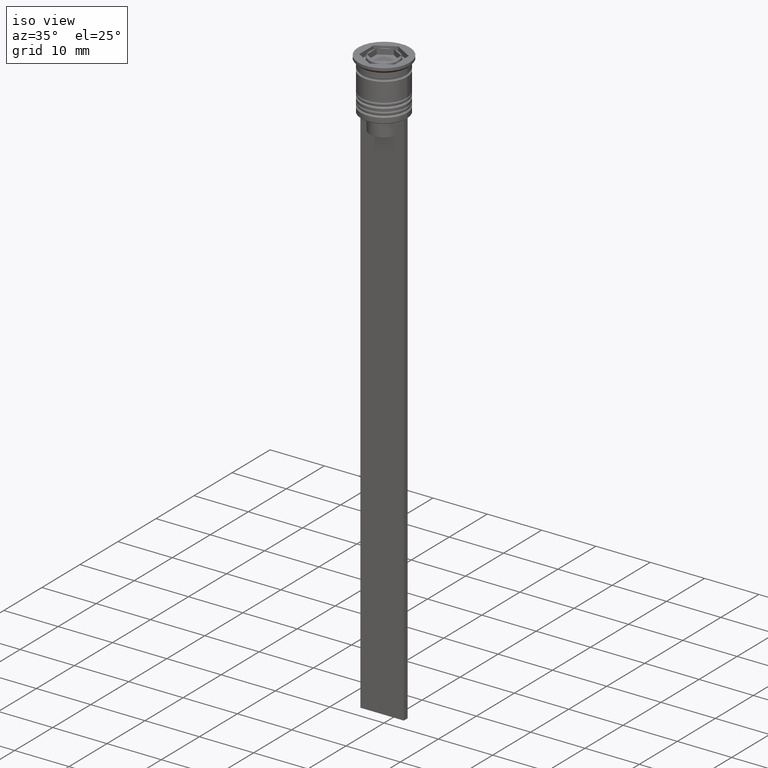
[diagram: clean part render]
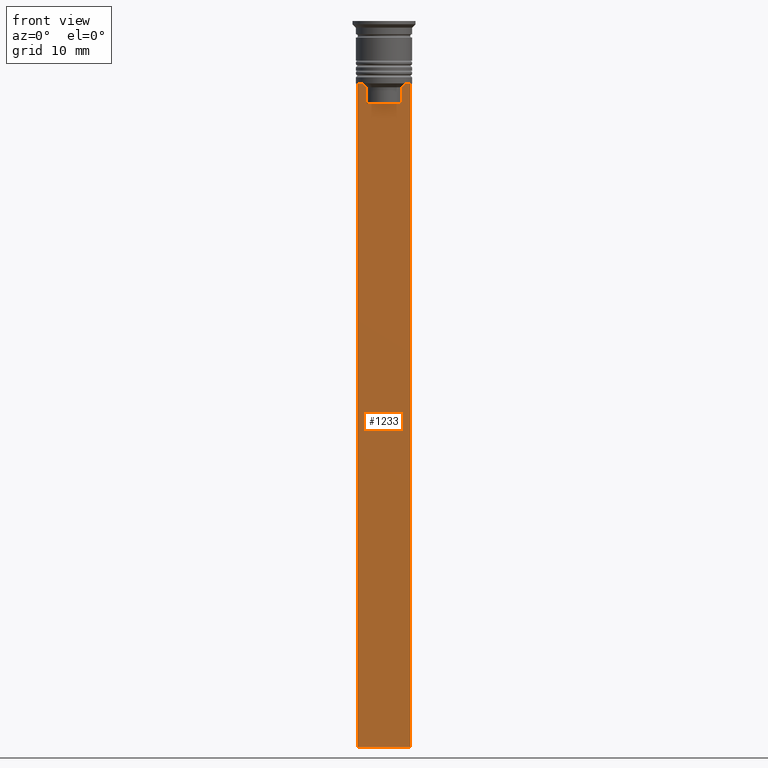
[diagram: tour spotlight — one face highlighted and labeled with its STEP entity id]
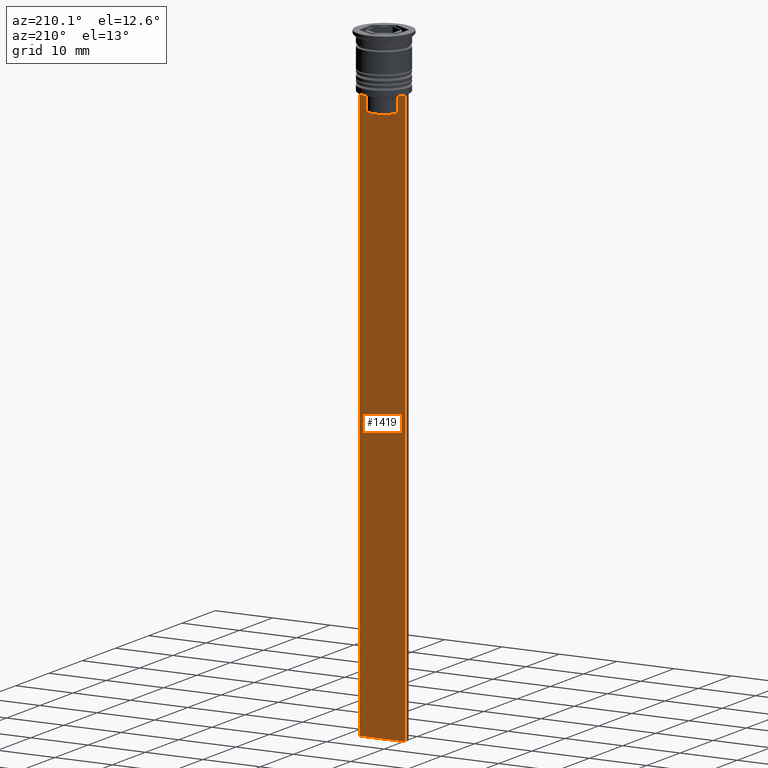
[diagram: tour spotlight — one face highlighted and labeled with its STEP entity id]
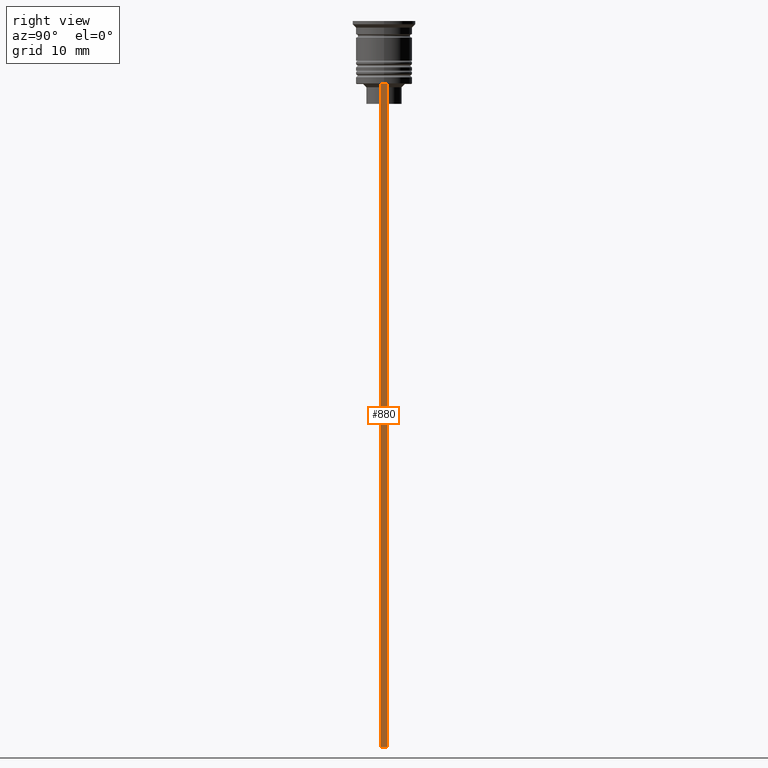
[diagram: tour spotlight — one face highlighted and labeled with its STEP entity id]
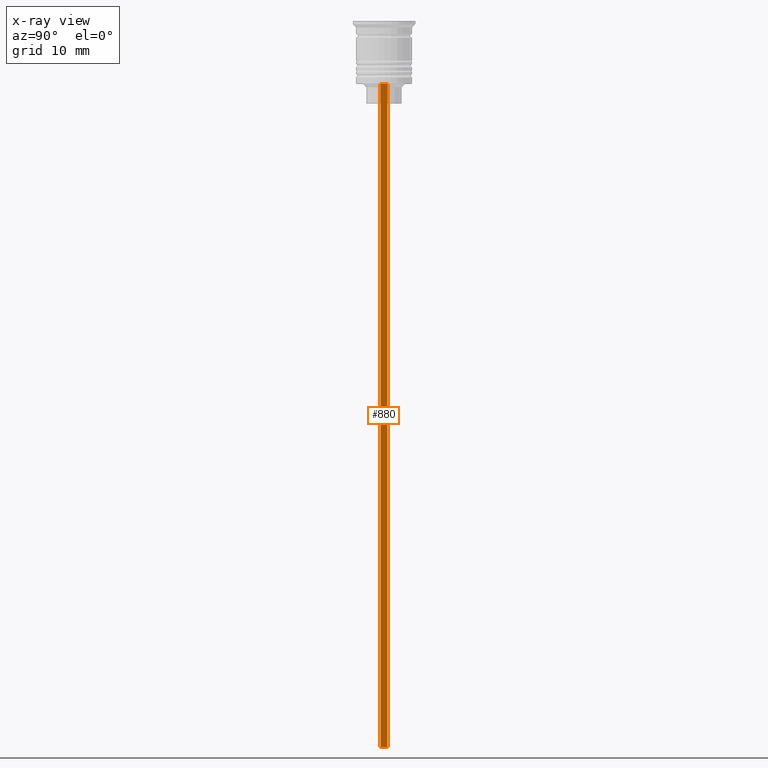
[diagram: x-ray of the same camera — body ghosted, this tour face saturated]
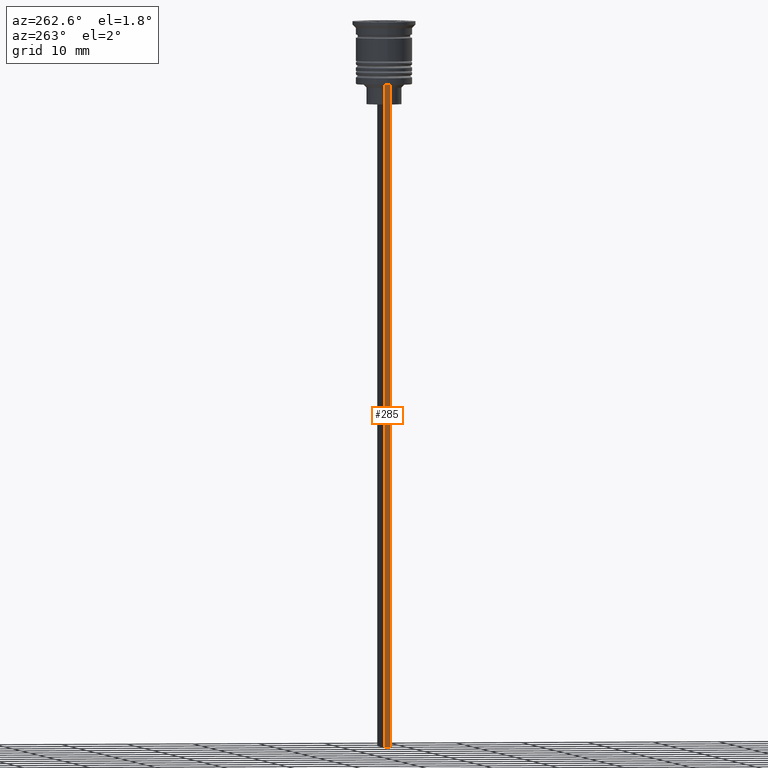
[diagram: tour spotlight — one face highlighted and labeled with its STEP entity id]
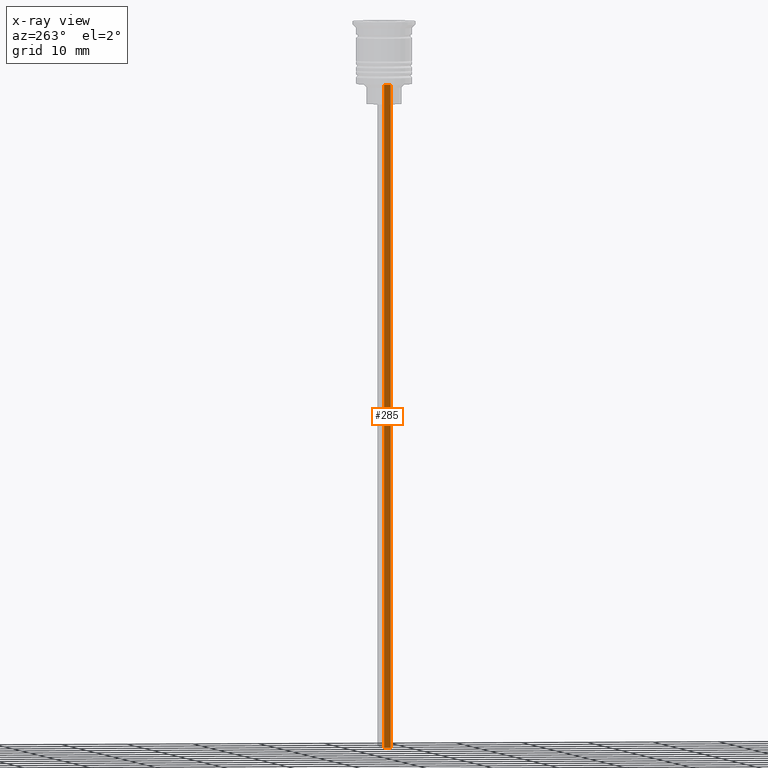
[diagram: x-ray of the same camera — body ghosted, this tour face saturated]
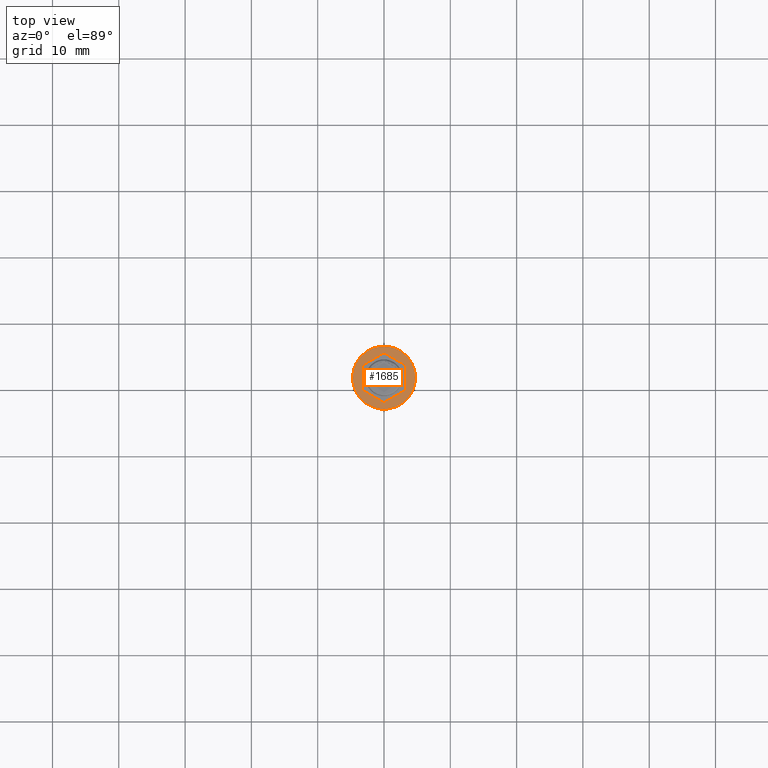
[diagram: tour spotlight — one face highlighted and labeled with its STEP entity id]
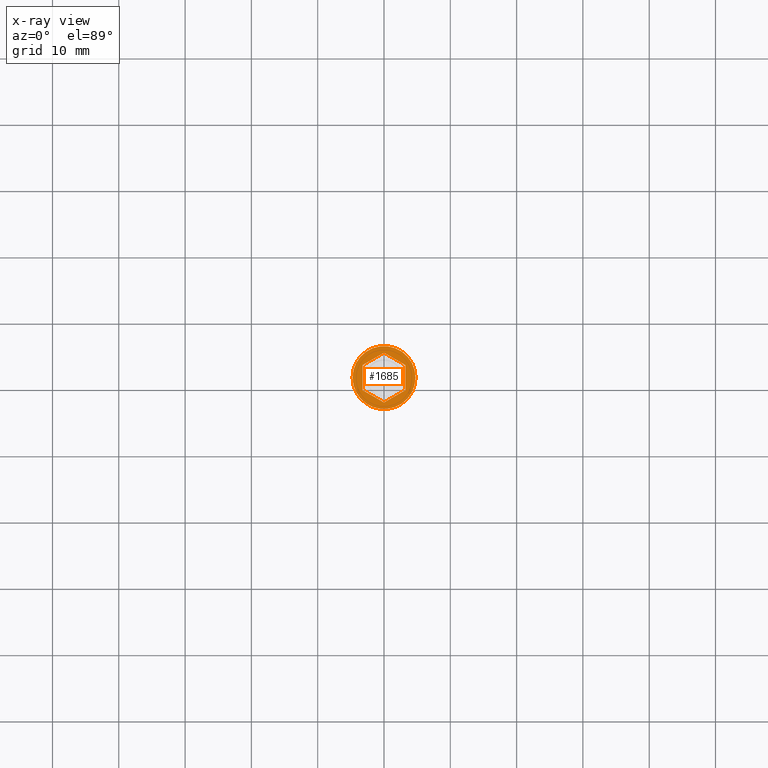
[diagram: x-ray of the same camera — body ghosted, this tour face saturated]
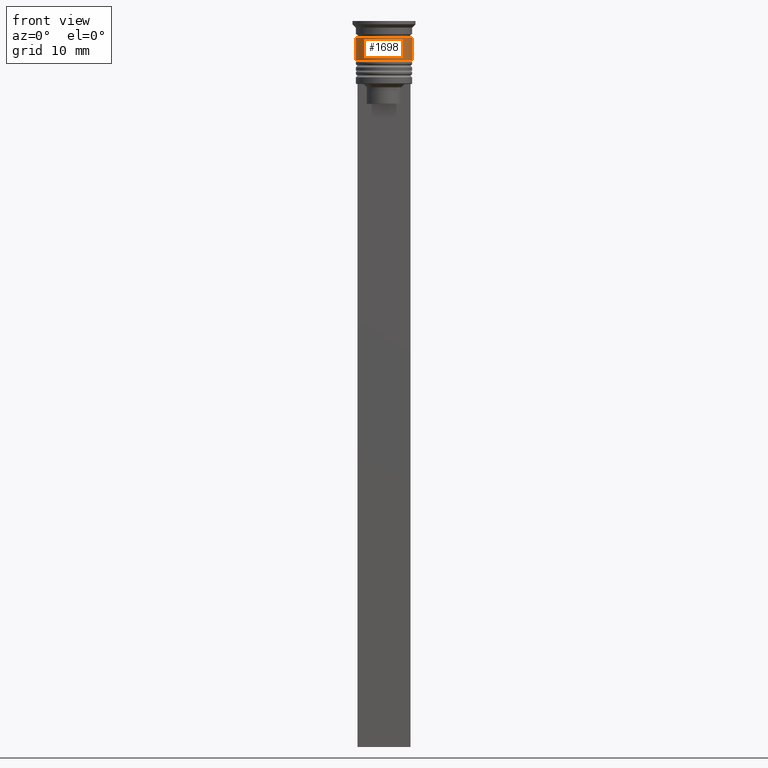
[diagram: tour spotlight — one face highlighted and labeled with its STEP entity id]
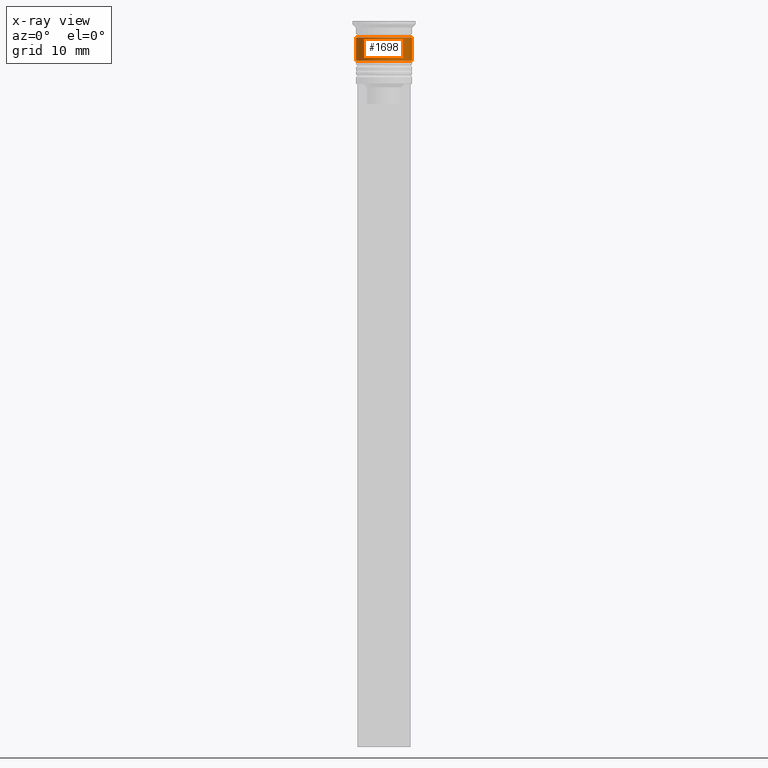
[diagram: x-ray of the same camera — body ghosted, this tour face saturated]
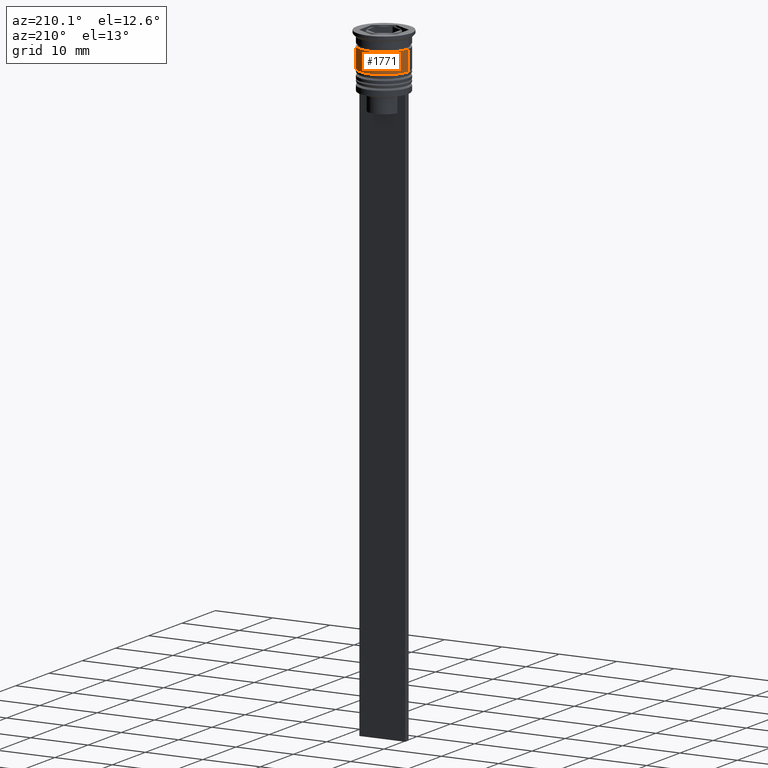
[diagram: tour spotlight — one face highlighted and labeled with its STEP entity id]
A machine part: a face-by-face anatomy tour. The part has 83 B-rep faces; the first image is the clean iso view, then the 7 largest visible faces are spotlighted one at a time (largest first), each with its STEP entity span.

Face 1 — front view, entity #1233. In plain terms, the highlighted planar face has unit normal (0, -1, -0).
Definition (entity closure, byte-faithful):
#29 = CARTESIAN_POINT ( 'NONE',  ( -2.602402735934616906, -0.5000000000000004441, 0.000000000000000000 ) ) ;
#45 = EDGE_CURVE ( 'NONE', #1825, #1504, #1996, .T. ) ;
#74 = DIRECTION ( 'NONE',  ( 1.000000000000000000, 0.000000000000000000, 0.000000000000000000 ) ) ;
#85 = EDGE_CURVE ( 'NONE', #1666, #1920, #448, .T. ) ;
#118 = LINE ( 'NONE', #645, #279 ) ;
#125 = AXIS2_PLACEMENT_3D ( 'NONE', #691, #2032, #869 ) ;
#141 = CARTESIAN_POINT ( 'NONE',  ( 2.602402735934616906, -0.5000000000000004441, 0.000000000000000000 ) ) ;
#154 = LINE ( 'NONE', #2366, #2075 ) ;
#164 = FACE_OUTER_BOUND ( 'NONE', #901, .T. ) ;
#185 = CARTESIAN_POINT ( 'NONE',  ( 2.602402735934616906, -0.5000000000000004441, -12.50000000000000000 ) ) ;
#216 = CARTESIAN_POINT ( 'NONE',  ( 3.110064308016796453, -0.5000000000000004441, -9.500000000000000000 ) ) ;
#279 = VECTOR ( 'NONE', #1968, 1000.000000000000000 ) ;
#315 = CARTESIAN_POINT ( 'NONE',  ( 4.000000000000005329, -0.5000000000000004441, -9.500000000000000000 ) ) ;
#376 = DIRECTION ( 'NONE',  ( 0.000000000000000000, 0.000000000000000000, -1.000000000000000000 ) ) ;
#410 = ORIENTED_EDGE ( 'NONE', *, *, #2312, .F. ) ;
#424 = LINE ( 'NONE', #1928, #550 ) ;
#438 = CARTESIAN_POINT ( 'NONE',  ( 2.602402735934616906, -0.5000000000000004441, -10.00000000000000178 ) ) ;
#448 = B_SPLINE_CURVE_WITH_KNOTS ( 'NONE', 3,
 ( #1892, #1868, #1474, #741 ),
 .UNSPECIFIED., .F., .F.,
 ( 4, 4 ),
 ( 0.005378271293598281544, 0.006090816219556000749 ),
 .UNSPECIFIED. ) ;
#550 = VECTOR ( 'NONE', #74, 1000.000000000000000 ) ;
#613 = CARTESIAN_POINT ( 'NONE',  ( 2.771864055700302476, -0.5000000000000004441, -9.833582414266679450 ) ) ;
#616 = ORIENTED_EDGE ( 'NONE', *, *, #891, .F. ) ;
#626 = EDGE_CURVE ( 'NONE', #1258, #1825, #1795, .T. ) ;
#645 = CARTESIAN_POINT ( 'NONE',  ( -3.999999999999994671, -0.5000000000000004441, -1.437742251701450202 ) ) ;
#691 = CARTESIAN_POINT ( 'NONE',  ( 4.000000000000005329, -0.5000000000000004441, -1.437742251701450202 ) ) ;
#739 = VECTOR ( 'NONE', #831, 1000.000000000000000 ) ;
#741 = CARTESIAN_POINT ( 'NONE',  ( -2.602402735934616906, -0.5000000000000004441, -10.00000000000000178 ) ) ;
#757 = EDGE_CURVE ( 'NONE', #2021, #1619, #154, .T. ) ;
#831 = DIRECTION ( 'NONE',  ( 1.000000000000000000, 0.000000000000000000, 0.000000000000000000 ) ) ;
#836 = ORIENTED_EDGE ( 'NONE', *, *, #1431, .F. ) ;
#842 = CARTESIAN_POINT ( 'NONE',  ( 4.000000000000005329, -0.5000000000000004441, -109.5000000000000000 ) ) ;
#869 = DIRECTION ( 'NONE',  ( 0.000000000000000000, 0.000000000000000000, -1.000000000000000000 ) ) ;
#891 = EDGE_CURVE ( 'NONE', #1504, #2021, #1410, .T. ) ;
#901 = EDGE_LOOP ( 'NONE', ( #1660, #2361, #2105, #410, #836, #1303, #616, #1210, #2272, #1426 ) ) ;
#981 = CARTESIAN_POINT ( 'NONE',  ( 2.602402735934616906, -0.5000000000000004441, -10.00000000000000178 ) ) ;
#993 = DIRECTION ( 'NONE',  ( 0.000000000000000000, 0.000000000000000000, -1.000000000000000000 ) ) ;
#1011 = CARTESIAN_POINT ( 'NONE',  ( 4.000000000000005329, -0.5000000000000004441, -109.5000000000000000 ) ) ;
#1042 = EDGE_CURVE ( 'NONE', #2060, #2356, #118, .T. ) ;
#1064 = DIRECTION ( 'NONE',  ( -0.000000000000000000, -0.000000000000000000, 1.000000000000000000 ) ) ;
#1112 = VERTEX_POINT ( 'NONE', #1011 ) ;
#1157 = LINE ( 'NONE', #29, #2040 ) ;
#1183 = CARTESIAN_POINT ( 'NONE',  ( 4.000000000000005329, -0.5000000000000004441, -1.437742251701450202 ) ) ;
#1210 = ORIENTED_EDGE ( 'NONE', *, *, #45, .F. ) ;
#1227 = CARTESIAN_POINT ( 'NONE',  ( -3.999999999999994671, -0.5000000000000004441, -9.500000000000000000 ) ) ;
#1233 = ADVANCED_FACE ( 'NONE', ( #164 ), #1631, .T. ) ;
#1258 = VERTEX_POINT ( 'NONE', #1645 ) ;
#1303 = ORIENTED_EDGE ( 'NONE', *, *, #757, .F. ) ;
#1391 = CARTESIAN_POINT ( 'NONE',  ( 0.000000000000000000, -0.5000000000000004441, -12.50000000000000000 ) ) ;
#1410 = B_SPLINE_CURVE_WITH_KNOTS ( 'NONE', 3,
 ( #981, #613, #1492, #216 ),
 .UNSPECIFIED., .F., .F.,
 ( 4, 4 ),
 ( 0.01295151922336847811, 0.01367164596165162602 ),
 .UNSPECIFIED. ) ;
#1426 = ORIENTED_EDGE ( 'NONE', *, *, #1767, .F. ) ;
#1431 = EDGE_CURVE ( 'NONE', #1619, #1112, #2118, .T. ) ;
#1449 = EDGE_CURVE ( 'NONE', #2060, #1666, #424, .T. ) ;
#1468 = DIRECTION ( 'NONE',  ( 1.000000000000000000, 0.000000000000000000, 0.000000000000000000 ) ) ;
#1474 = CARTESIAN_POINT ( 'NONE',  ( -2.771866350855961336, -0.5000000000000004441, -9.833580160334840059 ) ) ;
#1492 = CARTESIAN_POINT ( 'NONE',  ( 2.941045828809988549, -0.5000000000000004441, -9.666875663357577864 ) ) ;
#1504 = VERTEX_POINT ( 'NONE', #438 ) ;
#1619 = VERTEX_POINT ( 'NONE', #315 ) ;
#1630 = VECTOR ( 'NONE', #1064, 1000.000000000000000 ) ;
#1631 = PLANE ( 'NONE',  #125 ) ;
#1641 = VECTOR ( 'NONE', #993, 1000.000000000000000 ) ;
#1645 = CARTESIAN_POINT ( 'NONE',  ( -2.602402735934616906, -0.5000000000000004441, -12.50000000000000000 ) ) ;
#1660 = ORIENTED_EDGE ( 'NONE', *, *, #85, .F. ) ;
#1666 = VERTEX_POINT ( 'NONE', #1786 ) ;
#1727 = CARTESIAN_POINT ( 'NONE',  ( -3.999999999999994671, -0.5000000000000004441, -109.5000000000000000 ) ) ;
#1729 = CARTESIAN_POINT ( 'NONE',  ( -2.602402735934616906, -0.5000000000000004441, -10.00000000000000178 ) ) ;
#1767 = EDGE_CURVE ( 'NONE', #1920, #1258, #1157, .T. ) ;
#1786 = CARTESIAN_POINT ( 'NONE',  ( -3.110064308016796453, -0.5000000000000004441, -9.500000000000000000 ) ) ;
#1795 = LINE ( 'NONE', #1391, #739 ) ;
#1825 = VERTEX_POINT ( 'NONE', #185 ) ;
#1868 = CARTESIAN_POINT ( 'NONE',  ( -2.941047749529104749, -0.5000000000000004441, -9.666873766989334982 ) ) ;
#1884 = VECTOR ( 'NONE', #1970, 1000.000000000000000 ) ;
#1892 = CARTESIAN_POINT ( 'NONE',  ( -3.110064308016796453, -0.5000000000000004441, -9.500000000000000000 ) ) ;
#1920 = VERTEX_POINT ( 'NONE', #1729 ) ;
#1928 = CARTESIAN_POINT ( 'NONE',  ( 4.000000000000005329, -0.5000000000000004441, -9.500000000000000000 ) ) ;
#1968 = DIRECTION ( 'NONE',  ( 0.000000000000000000, 0.000000000000000000, -1.000000000000000000 ) ) ;
#1970 = DIRECTION ( 'NONE',  ( -1.000000000000000000, 0.000000000000000000, 0.000000000000000000 ) ) ;
#1996 = LINE ( 'NONE', #141, #1630 ) ;
#2021 = VERTEX_POINT ( 'NONE', #2113 ) ;
#2032 = DIRECTION ( 'NONE',  ( 0.000000000000000000, -1.000000000000000000, -0.000000000000000000 ) ) ;
#2040 = VECTOR ( 'NONE', #376, 1000.000000000000000 ) ;
#2060 = VERTEX_POINT ( 'NONE', #1227 ) ;
#2075 = VECTOR ( 'NONE', #1468, 1000.000000000000000 ) ;
#2105 = ORIENTED_EDGE ( 'NONE', *, *, #1042, .T. ) ;
#2113 = CARTESIAN_POINT ( 'NONE',  ( 3.110064308016796453, -0.5000000000000004441, -9.500000000000000000 ) ) ;
#2118 = LINE ( 'NONE', #1183, #1641 ) ;
#2272 = ORIENTED_EDGE ( 'NONE', *, *, #626, .F. ) ;
#2288 = LINE ( 'NONE', #842, #1884 ) ;
#2312 = EDGE_CURVE ( 'NONE', #1112, #2356, #2288, .T. ) ;
#2356 = VERTEX_POINT ( 'NONE', #1727 ) ;
#2361 = ORIENTED_EDGE ( 'NONE', *, *, #1449, .F. ) ;
#2366 = CARTESIAN_POINT ( 'NONE',  ( 4.000000000000005329, -0.5000000000000004441, -9.500000000000000000 ) ) ;

Face 2 — auxiliary view, entity #1419. In plain terms, the highlighted planar face has unit normal (0, -1, -0).
Definition (entity closure, byte-faithful):
#15 = VECTOR ( 'NONE', #1657, 1000.000000000000000 ) ;
#43 = CARTESIAN_POINT ( 'NONE',  ( 2.602402735934617350, 0.4999999999999995559, -12.50000000000000000 ) ) ;
#62 = LINE ( 'NONE', #2313, #2119 ) ;
#68 = CARTESIAN_POINT ( 'NONE',  ( -2.602402735934617350, 0.4999999999999995559, -10.00000000000000178 ) ) ;
#69 = DIRECTION ( 'NONE',  ( 1.000000000000000000, 0.000000000000000000, 0.000000000000000000 ) ) ;
#115 = LINE ( 'NONE', #917, #15 ) ;
#117 = ORIENTED_EDGE ( 'NONE', *, *, #2246, .T. ) ;
#156 = LINE ( 'NONE', #2191, #1601 ) ;
#186 = EDGE_CURVE ( 'NONE', #955, #1243, #1678, .T. ) ;
#222 = B_SPLINE_CURVE_WITH_KNOTS ( 'NONE', 3,
 ( #426, #2284, #2090, #68 ),
 .UNSPECIFIED., .F., .F.,
 ( 4, 4 ),
 ( 0.005378271293598279809, 0.006090816219555997280 ),
 .UNSPECIFIED. ) ;
#225 = PLANE ( 'NONE',  #432 ) ;
#234 = FACE_OUTER_BOUND ( 'NONE', #2316, .T. ) ;
#306 = CARTESIAN_POINT ( 'NONE',  ( 3.110064308016796897, 0.4999999999999995559, -9.500000000000000000 ) ) ;
#351 = CARTESIAN_POINT ( 'NONE',  ( 2.602402735934617350, 0.4999999999999995559, -10.00000000000000178 ) ) ;
#352 = VERTEX_POINT ( 'NONE', #372 ) ;
#372 = CARTESIAN_POINT ( 'NONE',  ( -2.602402735934617350, 0.4999999999999995559, -12.50000000000000000 ) ) ;
#382 = VERTEX_POINT ( 'NONE', #555 ) ;
#426 = CARTESIAN_POINT ( 'NONE',  ( -3.110064308016796897, 0.4999999999999995559, -9.500000000000000000 ) ) ;
#432 = AXIS2_PLACEMENT_3D ( 'NONE', #2252, #743, #966 ) ;
#457 = EDGE_CURVE ( 'NONE', #1193, #1211, #115, .T. ) ;
#514 = ORIENTED_EDGE ( 'NONE', *, *, #1155, .T. ) ;
#540 = ORIENTED_EDGE ( 'NONE', *, *, #457, .T. ) ;
#555 = CARTESIAN_POINT ( 'NONE',  ( -2.602402735934617350, 0.4999999999999995559, -10.00000000000000178 ) ) ;
#576 = ORIENTED_EDGE ( 'NONE', *, *, #186, .T. ) ;
#580 = CARTESIAN_POINT ( 'NONE',  ( 2.602402735934617350, 0.4999999999999995559, -10.00000000000000178 ) ) ;
#611 = EDGE_CURVE ( 'NONE', #352, #955, #1535, .T. ) ;
#625 = ORIENTED_EDGE ( 'NONE', *, *, #2097, .T. ) ;
#682 = ORIENTED_EDGE ( 'NONE', *, *, #611, .T. ) ;
#713 = VERTEX_POINT ( 'NONE', #1016 ) ;
#722 = VERTEX_POINT ( 'NONE', #306 ) ;
#743 = DIRECTION ( 'NONE',  ( 0.000000000000000000, -1.000000000000000000, -0.000000000000000000 ) ) ;
#777 = DIRECTION ( 'NONE',  ( -0.000000000000000000, -0.000000000000000000, 1.000000000000000000 ) ) ;
#908 = CARTESIAN_POINT ( 'NONE',  ( 2.941045828809989438, 0.4999999999999995559, -9.666875663357577864 ) ) ;
#910 = CARTESIAN_POINT ( 'NONE',  ( -3.999999999999994671, 0.4999999999999995559, -1.437742251701450202 ) ) ;
#917 = CARTESIAN_POINT ( 'NONE',  ( 4.000000000000005329, 0.4999999999999995559, -109.5000000000000000 ) ) ;
#919 = CARTESIAN_POINT ( 'NONE',  ( -3.110064308016796897, 0.4999999999999995559, -9.500000000000000000 ) ) ;
#939 = EDGE_CURVE ( 'NONE', #2245, #382, #222, .T. ) ;
#941 = CARTESIAN_POINT ( 'NONE',  ( 2.602402735934617350, 0.4999999999999995559, 0.000000000000000000 ) ) ;
#955 = VERTEX_POINT ( 'NONE', #43 ) ;
#966 = DIRECTION ( 'NONE',  ( 0.000000000000000000, 0.000000000000000000, -1.000000000000000000 ) ) ;
#994 = LINE ( 'NONE', #2293, #2301 ) ;
#1016 = CARTESIAN_POINT ( 'NONE',  ( -3.999999999999994671, 0.4999999999999997780, -9.500000000000000000 ) ) ;
#1057 = VECTOR ( 'NONE', #1986, 1000.000000000000000 ) ;
#1115 = CARTESIAN_POINT ( 'NONE',  ( 4.000000000000005329, 0.4999999999999995559, -9.500000000000000000 ) ) ;
#1155 = EDGE_CURVE ( 'NONE', #1302, #1193, #994, .T. ) ;
#1165 = DIRECTION ( 'NONE',  ( 0.000000000000000000, 0.000000000000000000, -1.000000000000000000 ) ) ;
#1193 = VERTEX_POINT ( 'NONE', #1997 ) ;
#1211 = VERTEX_POINT ( 'NONE', #1466 ) ;
#1243 = VERTEX_POINT ( 'NONE', #351 ) ;
#1302 = VERTEX_POINT ( 'NONE', #1115 ) ;
#1306 = CARTESIAN_POINT ( 'NONE',  ( 2.771864055700302476, 0.4999999999999995559, -9.833582414266677674 ) ) ;
#1342 = LINE ( 'NONE', #910, #1839 ) ;
#1394 = B_SPLINE_CURVE_WITH_KNOTS ( 'NONE', 3,
 ( #580, #1306, #908, #2385 ),
 .UNSPECIFIED., .F., .F.,
 ( 4, 4 ),
 ( 0.01295151922336847637, 0.01367164596165162602 ),
 .UNSPECIFIED. ) ;
#1413 = ORIENTED_EDGE ( 'NONE', *, *, #2067, .T. ) ;
#1419 = ADVANCED_FACE ( 'NONE', ( #234 ), #225, .F. ) ;
#1466 = CARTESIAN_POINT ( 'NONE',  ( -3.999999999999994671, 0.4999999999999995559, -109.5000000000000000 ) ) ;
#1480 = VECTOR ( 'NONE', #69, 1000.000000000000000 ) ;
#1496 = ORIENTED_EDGE ( 'NONE', *, *, #939, .T. ) ;
#1522 = VECTOR ( 'NONE', #777, 1000.000000000000000 ) ;
#1535 = LINE ( 'NONE', #1726, #1480 ) ;
#1601 = VECTOR ( 'NONE', #2345, 1000.000000000000000 ) ;
#1603 = LINE ( 'NONE', #1783, #1057 ) ;
#1624 = ORIENTED_EDGE ( 'NONE', *, *, #1975, .T. ) ;
#1651 = DIRECTION ( 'NONE',  ( 0.000000000000000000, 0.000000000000000000, -1.000000000000000000 ) ) ;
#1657 = DIRECTION ( 'NONE',  ( -1.000000000000000000, 0.000000000000000000, 0.000000000000000000 ) ) ;
#1678 = LINE ( 'NONE', #941, #1522 ) ;
#1726 = CARTESIAN_POINT ( 'NONE',  ( 0.000000000000000000, 0.4999999999999995559, -12.50000000000000000 ) ) ;
#1783 = CARTESIAN_POINT ( 'NONE',  ( 4.000000000000005329, 0.4999999999999995559, -9.500000000000000000 ) ) ;
#1832 = EDGE_CURVE ( 'NONE', #713, #1211, #1342, .T. ) ;
#1839 = VECTOR ( 'NONE', #1651, 1000.000000000000000 ) ;
#1871 = ORIENTED_EDGE ( 'NONE', *, *, #1832, .F. ) ;
#1975 = EDGE_CURVE ( 'NONE', #382, #352, #62, .T. ) ;
#1986 = DIRECTION ( 'NONE',  ( 1.000000000000000000, 0.000000000000000000, 0.000000000000000000 ) ) ;
#1997 = CARTESIAN_POINT ( 'NONE',  ( 4.000000000000005329, 0.4999999999999995559, -109.5000000000000000 ) ) ;
#2010 = DIRECTION ( 'NONE',  ( 0.000000000000000000, 0.000000000000000000, -1.000000000000000000 ) ) ;
#2067 = EDGE_CURVE ( 'NONE', #713, #2245, #156, .T. ) ;
#2090 = CARTESIAN_POINT ( 'NONE',  ( -2.771866350855961780, 0.4999999999999995559, -9.833580160334840059 ) ) ;
#2097 = EDGE_CURVE ( 'NONE', #722, #1302, #1603, .T. ) ;
#2119 = VECTOR ( 'NONE', #1165, 1000.000000000000000 ) ;
#2191 = CARTESIAN_POINT ( 'NONE',  ( 4.000000000000005329, 0.4999999999999995559, -9.500000000000000000 ) ) ;
#2245 = VERTEX_POINT ( 'NONE', #919 ) ;
#2246 = EDGE_CURVE ( 'NONE', #1243, #722, #1394, .T. ) ;
#2252 = CARTESIAN_POINT ( 'NONE',  ( 4.000000000000005329, 0.4999999999999995559, -1.437742251701450202 ) ) ;
#2284 = CARTESIAN_POINT ( 'NONE',  ( -2.941047749529105193, 0.4999999999999995559, -9.666873766989334982 ) ) ;
#2293 = CARTESIAN_POINT ( 'NONE',  ( 4.000000000000005329, 0.4999999999999995559, -1.437742251701450202 ) ) ;
#2301 = VECTOR ( 'NONE', #2010, 1000.000000000000000 ) ;
#2313 = CARTESIAN_POINT ( 'NONE',  ( -2.602402735934617350, 0.4999999999999995559, 0.000000000000000000 ) ) ;
#2316 = EDGE_LOOP ( 'NONE', ( #1413, #1496, #1624, #682, #576, #117, #625, #514, #540, #1871 ) ) ;
#2345 = DIRECTION ( 'NONE',  ( 1.000000000000000000, 0.000000000000000000, 0.000000000000000000 ) ) ;
#2385 = CARTESIAN_POINT ( 'NONE',  ( 3.110064308016796897, 0.4999999999999995559, -9.500000000000000000 ) ) ;

Face 3 — right view, entity #880. An x-ray twin of the same camera follows (body ghosted, this face saturated) — the face is partly hidden behind the body. In plain terms, the highlighted planar face has unit normal (-1, 0, 0).
Definition (entity closure, byte-faithful):
#65 = VECTOR ( 'NONE', #1432, 1000.000000000000000 ) ;
#236 = DIRECTION ( 'NONE',  ( 0.000000000000000000, 1.000000000000000000, 0.000000000000000000 ) ) ;
#315 = CARTESIAN_POINT ( 'NONE',  ( 4.000000000000005329, -0.5000000000000004441, -9.500000000000000000 ) ) ;
#335 = LINE ( 'NONE', #1422, #65 ) ;
#369 = DIRECTION ( 'NONE',  ( -1.000000000000000000, 0.000000000000000000, 0.000000000000000000 ) ) ;
#636 = ORIENTED_EDGE ( 'NONE', *, *, #2133, .T. ) ;
#720 = ORIENTED_EDGE ( 'NONE', *, *, #1431, .T. ) ;
#880 = ADVANCED_FACE ( 'NONE', ( #1478 ), #2218, .F. ) ;
#925 = EDGE_LOOP ( 'NONE', ( #1682, #636, #720, #1079 ) ) ;
#993 = DIRECTION ( 'NONE',  ( 0.000000000000000000, 0.000000000000000000, -1.000000000000000000 ) ) ;
#994 = LINE ( 'NONE', #2293, #2301 ) ;
#1011 = CARTESIAN_POINT ( 'NONE',  ( 4.000000000000005329, -0.5000000000000004441, -109.5000000000000000 ) ) ;
#1030 = EDGE_CURVE ( 'NONE', #1112, #1193, #1323, .T. ) ;
#1079 = ORIENTED_EDGE ( 'NONE', *, *, #1030, .T. ) ;
#1112 = VERTEX_POINT ( 'NONE', #1011 ) ;
#1115 = CARTESIAN_POINT ( 'NONE',  ( 4.000000000000005329, 0.4999999999999995559, -9.500000000000000000 ) ) ;
#1155 = EDGE_CURVE ( 'NONE', #1302, #1193, #994, .T. ) ;
#1183 = CARTESIAN_POINT ( 'NONE',  ( 4.000000000000005329, -0.5000000000000004441, -1.437742251701450202 ) ) ;
#1193 = VERTEX_POINT ( 'NONE', #1997 ) ;
#1302 = VERTEX_POINT ( 'NONE', #1115 ) ;
#1323 = LINE ( 'NONE', #2061, #1527 ) ;
#1422 = CARTESIAN_POINT ( 'NONE',  ( 4.000000000000005329, -0.5000000000000004441, -9.500000000000000000 ) ) ;
#1431 = EDGE_CURVE ( 'NONE', #1619, #1112, #2118, .T. ) ;
#1432 = DIRECTION ( 'NONE',  ( 0.000000000000000000, -1.000000000000000000, 0.000000000000000000 ) ) ;
#1478 = FACE_OUTER_BOUND ( 'NONE', #925, .T. ) ;
#1527 = VECTOR ( 'NONE', #236, 1000.000000000000000 ) ;
#1619 = VERTEX_POINT ( 'NONE', #315 ) ;
#1641 = VECTOR ( 'NONE', #993, 1000.000000000000000 ) ;
#1682 = ORIENTED_EDGE ( 'NONE', *, *, #1155, .F. ) ;
#1951 = AXIS2_PLACEMENT_3D ( 'NONE', #2048, #369, #2354 ) ;
#1997 = CARTESIAN_POINT ( 'NONE',  ( 4.000000000000005329, 0.4999999999999995559, -109.5000000000000000 ) ) ;
#2010 = DIRECTION ( 'NONE',  ( 0.000000000000000000, 0.000000000000000000, -1.000000000000000000 ) ) ;
#2048 = CARTESIAN_POINT ( 'NONE',  ( 4.000000000000005329, -0.5000000000000004441, -1.437742251701450202 ) ) ;
#2061 = CARTESIAN_POINT ( 'NONE',  ( 4.000000000000005329, -0.5000000000000004441, -109.5000000000000000 ) ) ;
#2118 = LINE ( 'NONE', #1183, #1641 ) ;
#2133 = EDGE_CURVE ( 'NONE', #1302, #1619, #335, .T. ) ;
#2218 = PLANE ( 'NONE',  #1951 ) ;
#2293 = CARTESIAN_POINT ( 'NONE',  ( 4.000000000000005329, 0.4999999999999995559, -1.437742251701450202 ) ) ;
#2301 = VECTOR ( 'NONE', #2010, 1000.000000000000000 ) ;
#2354 = DIRECTION ( 'NONE',  ( 0.000000000000000000, 0.000000000000000000, 1.000000000000000000 ) ) ;

Face 4 — auxiliary view, entity #285. An x-ray twin of the same camera follows (body ghosted, this face saturated) — the face is partly hidden behind the body. In plain terms, the highlighted planar face has unit normal (-1, 0, 0).
Definition (entity closure, byte-faithful):
#84 = DIRECTION ( 'NONE',  ( 0.000000000000000000, 1.000000000000000000, 0.000000000000000000 ) ) ;
#118 = LINE ( 'NONE', #645, #279 ) ;
#279 = VECTOR ( 'NONE', #1968, 1000.000000000000000 ) ;
#285 = ADVANCED_FACE ( 'NONE', ( #1005 ), #2281, .T. ) ;
#393 = LINE ( 'NONE', #559, #1674 ) ;
#459 = CARTESIAN_POINT ( 'NONE',  ( -3.999999999999994671, -0.5000000000000004441, -109.5000000000000000 ) ) ;
#559 = CARTESIAN_POINT ( 'NONE',  ( -3.999999999999994671, -0.5000000000000004441, -9.500000000000000000 ) ) ;
#645 = CARTESIAN_POINT ( 'NONE',  ( -3.999999999999994671, -0.5000000000000004441, -1.437742251701450202 ) ) ;
#651 = DIRECTION ( 'NONE',  ( 0.000000000000000000, 0.000000000000000000, 1.000000000000000000 ) ) ;
#713 = VERTEX_POINT ( 'NONE', #1016 ) ;
#792 = DIRECTION ( 'NONE',  ( 0.000000000000000000, -1.000000000000000000, 0.000000000000000000 ) ) ;
#826 = CARTESIAN_POINT ( 'NONE',  ( -3.999999999999994671, -0.5000000000000004441, -1.437742251701450202 ) ) ;
#910 = CARTESIAN_POINT ( 'NONE',  ( -3.999999999999994671, 0.4999999999999995559, -1.437742251701450202 ) ) ;
#911 = EDGE_LOOP ( 'NONE', ( #2231, #1433, #1965, #1503 ) ) ;
#1005 = FACE_OUTER_BOUND ( 'NONE', #911, .T. ) ;
#1016 = CARTESIAN_POINT ( 'NONE',  ( -3.999999999999994671, 0.4999999999999997780, -9.500000000000000000 ) ) ;
#1042 = EDGE_CURVE ( 'NONE', #2060, #2356, #118, .T. ) ;
#1110 = EDGE_CURVE ( 'NONE', #2356, #1211, #2138, .T. ) ;
#1211 = VERTEX_POINT ( 'NONE', #1466 ) ;
#1227 = CARTESIAN_POINT ( 'NONE',  ( -3.999999999999994671, -0.5000000000000004441, -9.500000000000000000 ) ) ;
#1304 = EDGE_CURVE ( 'NONE', #713, #2060, #393, .T. ) ;
#1342 = LINE ( 'NONE', #910, #1839 ) ;
#1407 = VECTOR ( 'NONE', #84, 1000.000000000000000 ) ;
#1433 = ORIENTED_EDGE ( 'NONE', *, *, #1832, .T. ) ;
#1466 = CARTESIAN_POINT ( 'NONE',  ( -3.999999999999994671, 0.4999999999999995559, -109.5000000000000000 ) ) ;
#1503 = ORIENTED_EDGE ( 'NONE', *, *, #1042, .F. ) ;
#1570 = DIRECTION ( 'NONE',  ( -1.000000000000000000, 0.000000000000000000, 0.000000000000000000 ) ) ;
#1651 = DIRECTION ( 'NONE',  ( 0.000000000000000000, 0.000000000000000000, -1.000000000000000000 ) ) ;
#1674 = VECTOR ( 'NONE', #792, 1000.000000000000000 ) ;
#1727 = CARTESIAN_POINT ( 'NONE',  ( -3.999999999999994671, -0.5000000000000004441, -109.5000000000000000 ) ) ;
#1832 = EDGE_CURVE ( 'NONE', #713, #1211, #1342, .T. ) ;
#1839 = VECTOR ( 'NONE', #1651, 1000.000000000000000 ) ;
#1949 = AXIS2_PLACEMENT_3D ( 'NONE', #826, #1570, #651 ) ;
#1965 = ORIENTED_EDGE ( 'NONE', *, *, #1110, .F. ) ;
#1968 = DIRECTION ( 'NONE',  ( 0.000000000000000000, 0.000000000000000000, -1.000000000000000000 ) ) ;
#2060 = VERTEX_POINT ( 'NONE', #1227 ) ;
#2138 = LINE ( 'NONE', #459, #1407 ) ;
#2231 = ORIENTED_EDGE ( 'NONE', *, *, #1304, .F. ) ;
#2281 = PLANE ( 'NONE',  #1949 ) ;
#2356 = VERTEX_POINT ( 'NONE', #1727 ) ;

Face 5 — top view, entity #1685. An x-ray twin of the same camera follows (body ghosted, this face saturated) — the face is partly hidden behind the body. In plain terms, the highlighted planar face has unit normal (0, -0, 1).
Definition (entity closure, byte-faithful):
#54 = ORIENTED_EDGE ( 'NONE', *, *, #961, .F. ) ;
#70 = DIRECTION ( 'NONE',  ( 0.8660254037844387076, -0.4999999999999998890, 0.000000000000000000 ) ) ;
#133 = VERTEX_POINT ( 'NONE', #754 ) ;
#137 = CARTESIAN_POINT ( 'NONE',  ( -2.112280747572084180E-16, -3.752776749732567918, 0.000000000000000000 ) ) ;
#197 = LINE ( 'NONE', #1509, #403 ) ;
#209 = VECTOR ( 'NONE', #70, 1000.000000000000114 ) ;
#226 = EDGE_CURVE ( 'NONE', #1722, #1265, #1788, .T. ) ;
#256 = CARTESIAN_POINT ( 'NONE',  ( 0.000000000000000000, 0.000000000000000000, 0.000000000000000000 ) ) ;
#323 = VERTEX_POINT ( 'NONE', #2102 ) ;
#328 = VERTEX_POINT ( 'NONE', #1989 ) ;
#337 = EDGE_CURVE ( 'NONE', #323, #364, #1107, .T. ) ;
#364 = VERTEX_POINT ( 'NONE', #1862 ) ;
#381 = DIRECTION ( 'NONE',  ( 0.000000000000000000, -1.000000000000000000, 0.000000000000000000 ) ) ;
#391 = EDGE_CURVE ( 'NONE', #328, #133, #1802, .T. ) ;
#400 = LINE ( 'NONE', #933, #1602 ) ;
#403 = VECTOR ( 'NONE', #2026, 1000.000000000000000 ) ;
#485 = LINE ( 'NONE', #786, #209 ) ;
#506 = CIRCLE ( 'NONE', #1139, 4.750000000000000000 ) ;
#582 = ORIENTED_EDGE ( 'NONE', *, *, #985, .T. ) ;
#690 = ORIENTED_EDGE ( 'NONE', *, *, #2216, .F. ) ;
#718 = DIRECTION ( 'NONE',  ( 0.000000000000000000, -0.000000000000000000, 1.000000000000000000 ) ) ;
#754 = CARTESIAN_POINT ( 'NONE',  ( 3.250000000000000444, -1.876388374866283515, 0.000000000000000000 ) ) ;
#786 = CARTESIAN_POINT ( 'NONE',  ( -3.250000000000000444, -1.876388374866284625, 0.000000000000000000 ) ) ;
#796 = CARTESIAN_POINT ( 'NONE',  ( -3.250000000000000444, 1.876388374866282627, 0.000000000000000000 ) ) ;
#808 = EDGE_LOOP ( 'NONE', ( #1277, #1791, #1009, #1977, #54, #690 ) ) ;
#895 = AXIS2_PLACEMENT_3D ( 'NONE', #256, #1540, #2135 ) ;
#900 = FACE_OUTER_BOUND ( 'NONE', #1867, .T. ) ;
#933 = CARTESIAN_POINT ( 'NONE',  ( 0.000000000000000000, 3.752776749732567030, 0.000000000000000000 ) ) ;
#961 = EDGE_CURVE ( 'NONE', #1130, #1311, #1872, .T. ) ;
#985 = EDGE_CURVE ( 'NONE', #1265, #1722, #506, .T. ) ;
#1009 = ORIENTED_EDGE ( 'NONE', *, *, #391, .F. ) ;
#1107 = LINE ( 'NONE', #2156, #1327 ) ;
#1130 = VERTEX_POINT ( 'NONE', #1192 ) ;
#1139 = AXIS2_PLACEMENT_3D ( 'NONE', #2073, #1517, #1505 ) ;
#1192 = CARTESIAN_POINT ( 'NONE',  ( -3.250000000000000444, 1.876388374866282627, 0.000000000000000000 ) ) ;
#1265 = VERTEX_POINT ( 'NONE', #2382 ) ;
#1277 = ORIENTED_EDGE ( 'NONE', *, *, #337, .F. ) ;
#1311 = VERTEX_POINT ( 'NONE', #1870 ) ;
#1327 = VECTOR ( 'NONE', #1481, 1000.000000000000000 ) ;
#1463 = DIRECTION ( 'NONE',  ( 1.000000000000000000, 0.000000000000000000, 0.000000000000000000 ) ) ;
#1481 = DIRECTION ( 'NONE',  ( -0.8660254037844388186, 0.4999999999999997224, 0.000000000000000000 ) ) ;
#1505 = DIRECTION ( 'NONE',  ( 1.000000000000000000, 0.000000000000000000, 0.000000000000000000 ) ) ;
#1509 = CARTESIAN_POINT ( 'NONE',  ( 3.250000000000000444, -1.876388374866283515, 0.000000000000000000 ) ) ;
#1517 = DIRECTION ( 'NONE',  ( -0.000000000000000000, -0.000000000000000000, 1.000000000000000000 ) ) ;
#1540 = DIRECTION ( 'NONE',  ( -0.000000000000000000, -0.000000000000000000, 1.000000000000000000 ) ) ;
#1577 = ORIENTED_EDGE ( 'NONE', *, *, #226, .T. ) ;
#1602 = VECTOR ( 'NONE', #2248, 1000.000000000000000 ) ;
#1643 = PLANE ( 'NONE',  #1717 ) ;
#1661 = CARTESIAN_POINT ( 'NONE',  ( -4.750000000000000000, 5.817072295949927426E-16, 0.000000000000000000 ) ) ;
#1685 = ADVANCED_FACE ( 'NONE', ( #2166, #900 ), #1643, .T. ) ;
#1717 = AXIS2_PLACEMENT_3D ( 'NONE', #2380, #718, #1463 ) ;
#1722 = VERTEX_POINT ( 'NONE', #1661 ) ;
#1788 = CIRCLE ( 'NONE', #895, 4.750000000000000000 ) ;
#1791 = ORIENTED_EDGE ( 'NONE', *, *, #2204, .F. ) ;
#1802 = LINE ( 'NONE', #137, #2031 ) ;
#1862 = CARTESIAN_POINT ( 'NONE',  ( 0.000000000000000000, 3.752776749732567030, 0.000000000000000000 ) ) ;
#1867 = EDGE_LOOP ( 'NONE', ( #582, #1577 ) ) ;
#1870 = CARTESIAN_POINT ( 'NONE',  ( -3.250000000000000444, -1.876388374866284625, 0.000000000000000000 ) ) ;
#1872 = LINE ( 'NONE', #796, #2331 ) ;
#1977 = ORIENTED_EDGE ( 'NONE', *, *, #2352, .F. ) ;
#1989 = CARTESIAN_POINT ( 'NONE',  ( -2.112280747572084180E-16, -3.752776749732567918, 0.000000000000000000 ) ) ;
#2026 = DIRECTION ( 'NONE',  ( 2.311253228826398661E-16, 1.000000000000000000, 0.000000000000000000 ) ) ;
#2031 = VECTOR ( 'NONE', #2051, 1000.000000000000000 ) ;
#2051 = DIRECTION ( 'NONE',  ( 0.8660254037844385966, 0.5000000000000001110, 0.000000000000000000 ) ) ;
#2073 = CARTESIAN_POINT ( 'NONE',  ( 0.000000000000000000, 0.000000000000000000, 0.000000000000000000 ) ) ;
#2102 = CARTESIAN_POINT ( 'NONE',  ( 3.250000000000001332, 1.876388374866284181, 0.000000000000000000 ) ) ;
#2135 = DIRECTION ( 'NONE',  ( 1.000000000000000000, 0.000000000000000000, 0.000000000000000000 ) ) ;
#2156 = CARTESIAN_POINT ( 'NONE',  ( 3.250000000000001332, 1.876388374866284181, 0.000000000000000000 ) ) ;
#2166 = FACE_BOUND ( 'NONE', #808, .T. ) ;
#2204 = EDGE_CURVE ( 'NONE', #133, #323, #197, .T. ) ;
#2216 = EDGE_CURVE ( 'NONE', #364, #1130, #400, .T. ) ;
#2248 = DIRECTION ( 'NONE',  ( -0.8660254037844385966, -0.5000000000000001110, 0.000000000000000000 ) ) ;
#2331 = VECTOR ( 'NONE', #381, 1000.000000000000000 ) ;
#2352 = EDGE_CURVE ( 'NONE', #1311, #328, #485, .T. ) ;
#2380 = CARTESIAN_POINT ( 'NONE',  ( 0.000000000000000000, 0.000000000000000000, 0.000000000000000000 ) ) ;
#2382 = CARTESIAN_POINT ( 'NONE',  ( 4.750000000000000000, 0.000000000000000000, 0.000000000000000000 ) ) ;

Face 6 — front view, entity #1698. An x-ray twin of the same camera follows (body ghosted, this face saturated) — the face is partly hidden behind the body. In plain terms, the highlighted cylindrical surface (edge-blend (fillet) strip) has radius 4.25 mm, axis along (-0, -0, 1).
Definition (entity closure, byte-faithful):
#22 = VECTOR ( 'NONE', #960, 1000.000000000000000 ) ;
#27 = AXIS2_PLACEMENT_3D ( 'NONE', #2066, #2250, #223 ) ;
#44 = ORIENTED_EDGE ( 'NONE', *, *, #386, .F. ) ;
#93 = AXIS2_PLACEMENT_3D ( 'NONE', #1035, #1000, #1742 ) ;
#218 = EDGE_CURVE ( 'NONE', #1245, #2068, #2213, .T. ) ;
#223 = DIRECTION ( 'NONE',  ( 1.000000000000000000, 0.000000000000000000, 0.000000000000000000 ) ) ;
#317 = ORIENTED_EDGE ( 'NONE', *, *, #1473, .T. ) ;
#386 = EDGE_CURVE ( 'NONE', #450, #1245, #1044, .T. ) ;
#398 = CIRCLE ( 'NONE', #93, 4.250000000000000888 ) ;
#450 = VERTEX_POINT ( 'NONE', #1672 ) ;
#538 = CARTESIAN_POINT ( 'NONE',  ( 4.250000000000000888, 0.000000000000000000, -6.000000000000000000 ) ) ;
#609 = DIRECTION ( 'NONE',  ( 1.000000000000000000, 0.000000000000000000, 0.000000000000000000 ) ) ;
#849 = FACE_OUTER_BOUND ( 'NONE', #1955, .T. ) ;
#855 = VERTEX_POINT ( 'NONE', #538 ) ;
#960 = DIRECTION ( 'NONE',  ( -0.000000000000000000, -0.000000000000000000, 1.000000000000000000 ) ) ;
#976 = DIRECTION ( 'NONE',  ( -0.000000000000000000, -0.000000000000000000, 1.000000000000000000 ) ) ;
#989 = EDGE_CURVE ( 'NONE', #855, #2068, #2244, .T. ) ;
#1000 = DIRECTION ( 'NONE',  ( -0.000000000000000000, -0.000000000000000000, 1.000000000000000000 ) ) ;
#1035 = CARTESIAN_POINT ( 'NONE',  ( 0.000000000000000000, 0.000000000000000000, -6.000000000000000000 ) ) ;
#1044 = LINE ( 'NONE', #1237, #1592 ) ;
#1237 = CARTESIAN_POINT ( 'NONE',  ( -4.250000000000000000, 5.204748896376250699E-16, 0.000000000000000000 ) ) ;
#1240 = ORIENTED_EDGE ( 'NONE', *, *, #218, .F. ) ;
#1245 = VERTEX_POINT ( 'NONE', #2196 ) ;
#1473 = EDGE_CURVE ( 'NONE', #450, #855, #398, .T. ) ;
#1485 = CYLINDRICAL_SURFACE ( 'NONE', #27, 4.250000000000000000 ) ;
#1592 = VECTOR ( 'NONE', #1849, 1000.000000000000000 ) ;
#1655 = ORIENTED_EDGE ( 'NONE', *, *, #989, .T. ) ;
#1672 = CARTESIAN_POINT ( 'NONE',  ( -4.250000000000000888, 5.204748896376251685E-16, -6.000000000000000000 ) ) ;
#1694 = CARTESIAN_POINT ( 'NONE',  ( 4.250000000000000000, 0.000000000000000000, 0.000000000000000000 ) ) ;
#1698 = ADVANCED_FACE ( 'NONE', ( #849 ), #1485, .T. ) ;
#1742 = DIRECTION ( 'NONE',  ( 1.000000000000000000, 0.000000000000000000, 0.000000000000000000 ) ) ;
#1749 = CARTESIAN_POINT ( 'NONE',  ( 0.000000000000000000, 0.000000000000000000, -2.500000000000000000 ) ) ;
#1849 = DIRECTION ( 'NONE',  ( -0.000000000000000000, -0.000000000000000000, 1.000000000000000000 ) ) ;
#1955 = EDGE_LOOP ( 'NONE', ( #44, #317, #1655, #1240 ) ) ;
#2066 = CARTESIAN_POINT ( 'NONE',  ( 0.000000000000000000, 0.000000000000000000, 0.000000000000000000 ) ) ;
#2068 = VERTEX_POINT ( 'NONE', #2368 ) ;
#2196 = CARTESIAN_POINT ( 'NONE',  ( -4.250000000000000000, 5.204748896376250699E-16, -2.500000000000000000 ) ) ;
#2213 = CIRCLE ( 'NONE', #2254, 4.250000000000000000 ) ;
#2244 = LINE ( 'NONE', #1694, #22 ) ;
#2250 = DIRECTION ( 'NONE',  ( -0.000000000000000000, -0.000000000000000000, 1.000000000000000000 ) ) ;
#2254 = AXIS2_PLACEMENT_3D ( 'NONE', #1749, #976, #609 ) ;
#2368 = CARTESIAN_POINT ( 'NONE',  ( 4.250000000000000000, 0.000000000000000000, -2.500000000000000000 ) ) ;

Face 7 — auxiliary view, entity #1771. In plain terms, the highlighted cylindrical surface (edge-blend (fillet) strip) has radius 4.25 mm, axis along (-0, -0, 1).
Definition (entity closure, byte-faithful):
#22 = VECTOR ( 'NONE', #960, 1000.000000000000000 ) ;
#232 = CARTESIAN_POINT ( 'NONE',  ( 0.000000000000000000, 0.000000000000000000, -6.000000000000000000 ) ) ;
#386 = EDGE_CURVE ( 'NONE', #450, #1245, #1044, .T. ) ;
#450 = VERTEX_POINT ( 'NONE', #1672 ) ;
#518 = ORIENTED_EDGE ( 'NONE', *, *, #386, .T. ) ;
#538 = CARTESIAN_POINT ( 'NONE',  ( 4.250000000000000888, 0.000000000000000000, -6.000000000000000000 ) ) ;
#602 = ORIENTED_EDGE ( 'NONE', *, *, #1898, .T. ) ;
#680 = CARTESIAN_POINT ( 'NONE',  ( 0.000000000000000000, 0.000000000000000000, -2.500000000000000000 ) ) ;
#740 = CIRCLE ( 'NONE', #1752, 4.250000000000000000 ) ;
#753 = CYLINDRICAL_SURFACE ( 'NONE', #2224, 4.250000000000000000 ) ;
#855 = VERTEX_POINT ( 'NONE', #538 ) ;
#903 = DIRECTION ( 'NONE',  ( 1.000000000000000000, 0.000000000000000000, 0.000000000000000000 ) ) ;
#960 = DIRECTION ( 'NONE',  ( -0.000000000000000000, -0.000000000000000000, 1.000000000000000000 ) ) ;
#975 = DIRECTION ( 'NONE',  ( -0.000000000000000000, -0.000000000000000000, 1.000000000000000000 ) ) ;
#989 = EDGE_CURVE ( 'NONE', #855, #2068, #2244, .T. ) ;
#1044 = LINE ( 'NONE', #1237, #1592 ) ;
#1062 = EDGE_LOOP ( 'NONE', ( #602, #518, #1120, #1196 ) ) ;
#1065 = DIRECTION ( 'NONE',  ( -0.000000000000000000, -0.000000000000000000, 1.000000000000000000 ) ) ;
#1120 = ORIENTED_EDGE ( 'NONE', *, *, #1256, .F. ) ;
#1135 = DIRECTION ( 'NONE',  ( 1.000000000000000000, 0.000000000000000000, 0.000000000000000000 ) ) ;
#1196 = ORIENTED_EDGE ( 'NONE', *, *, #989, .F. ) ;
#1237 = CARTESIAN_POINT ( 'NONE',  ( -4.250000000000000000, 5.204748896376250699E-16, 0.000000000000000000 ) ) ;
#1245 = VERTEX_POINT ( 'NONE', #2196 ) ;
#1256 = EDGE_CURVE ( 'NONE', #2068, #1245, #740, .T. ) ;
#1498 = CARTESIAN_POINT ( 'NONE',  ( 0.000000000000000000, 0.000000000000000000, 0.000000000000000000 ) ) ;
#1592 = VECTOR ( 'NONE', #1849, 1000.000000000000000 ) ;
#1672 = CARTESIAN_POINT ( 'NONE',  ( -4.250000000000000888, 5.204748896376251685E-16, -6.000000000000000000 ) ) ;
#1676 = FACE_OUTER_BOUND ( 'NONE', #1062, .T. ) ;
#1694 = CARTESIAN_POINT ( 'NONE',  ( 4.250000000000000000, 0.000000000000000000, 0.000000000000000000 ) ) ;
#1752 = AXIS2_PLACEMENT_3D ( 'NONE', #680, #1065, #903 ) ;
#1771 = ADVANCED_FACE ( 'NONE', ( #1676 ), #753, .T. ) ;
#1849 = DIRECTION ( 'NONE',  ( -0.000000000000000000, -0.000000000000000000, 1.000000000000000000 ) ) ;
#1898 = EDGE_CURVE ( 'NONE', #855, #450, #2152, .T. ) ;
#1913 = DIRECTION ( 'NONE',  ( 1.000000000000000000, 0.000000000000000000, 0.000000000000000000 ) ) ;
#2068 = VERTEX_POINT ( 'NONE', #2368 ) ;
#2152 = CIRCLE ( 'NONE', #2153, 4.250000000000000888 ) ;
#2153 = AXIS2_PLACEMENT_3D ( 'NONE', #232, #975, #1913 ) ;
#2196 = CARTESIAN_POINT ( 'NONE',  ( -4.250000000000000000, 5.204748896376250699E-16, -2.500000000000000000 ) ) ;
#2224 = AXIS2_PLACEMENT_3D ( 'NONE', #1498, #2240, #1135 ) ;
#2240 = DIRECTION ( 'NONE',  ( -0.000000000000000000, -0.000000000000000000, 1.000000000000000000 ) ) ;
#2244 = LINE ( 'NONE', #1694, #22 ) ;
#2368 = CARTESIAN_POINT ( 'NONE',  ( 4.250000000000000000, 0.000000000000000000, -2.500000000000000000 ) ) ;